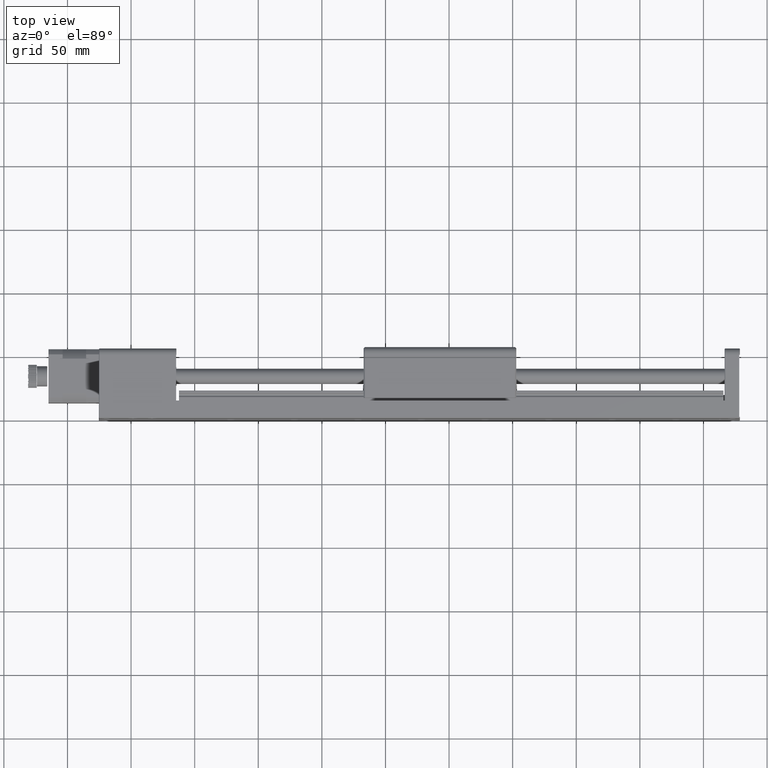
[diagram: clean part render]
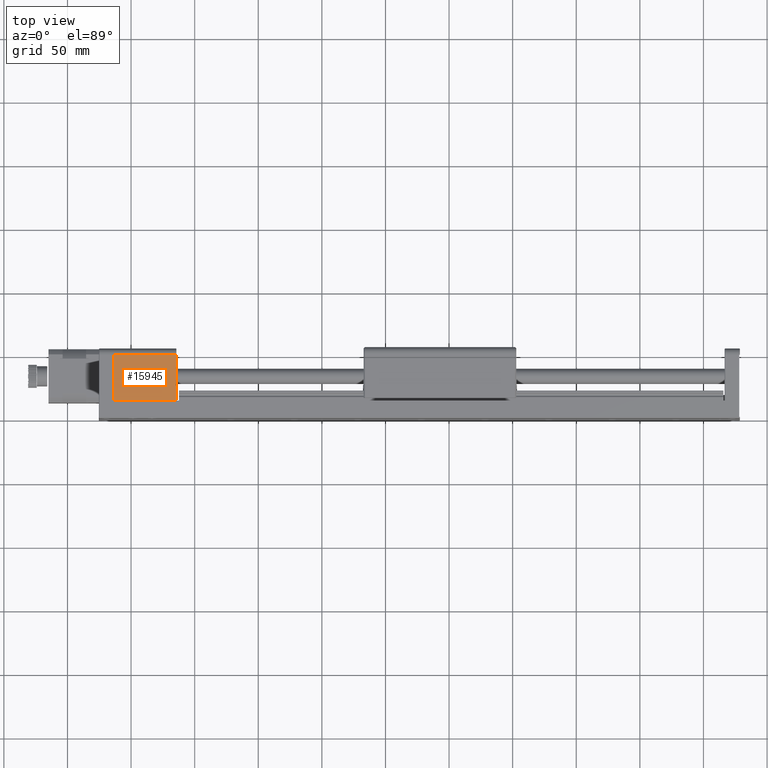
[diagram: same view with one face highlighted and labeled with its STEP entity id]
A machine part, top view. The second image highlights one B-rep face of the part: STEP entity #15945.
In plain terms, the highlighted planar face has unit normal (-0, -0, -1).
Its self-contained STEP definition (entity closure, byte-faithful):
#667 = VERTEX_POINT ( 'NONE', #8347 ) ;
#755 = VECTOR ( 'NONE', #28953, 1000.000000000000000 ) ;
#899 = EDGE_LOOP ( 'NONE', ( #25502, #37342, #13756, #33209 ) ) ;
#1339 = DIRECTION ( 'NONE',  ( 1.322943490866825900E-015, 1.000000000000000000, -1.832510269998355700E-016 ) ) ;
#7652 = DIRECTION ( 'NONE',  ( -1.000000000000000000, 1.322943490866827700E-015, 1.104671909502030800E-014 ) ) ;
#8347 = CARTESIAN_POINT ( 'NONE',  ( -264.5535546772388200, 49.99999999999409500, 203.1675170193777800 ) ) ;
#11066 = LINE ( 'NONE', #32231, #17679 ) ;
#13454 = DIRECTION ( 'NONE',  ( 1.000000000000000000, -1.322943490866827700E-015, -1.104671909502030900E-014 ) ) ;
#13756 = ORIENTED_EDGE ( 'NONE', *, *, #30614, .T. ) ;
#15630 = VECTOR ( 'NONE', #13454, 1000.000000000000000 ) ;
#15945 = ADVANCED_FACE ( 'NONE', ( #30057 ), #19614, .F. ) ;
#17387 = VERTEX_POINT ( 'NONE', #41469 ) ;
#17679 = VECTOR ( 'NONE', #53472, 1000.000000000000000 ) ;
#19614 = PLANE ( 'NONE',  #19708 ) ;
#19708 = AXIS2_PLACEMENT_3D ( 'NONE', #49064, #36464, #7652 ) ;
#23272 = VERTEX_POINT ( 'NONE', #52700 ) ;
#23932 = EDGE_CURVE ( 'NONE', #29002, #667, #32250, .T. ) ;
#25502 = ORIENTED_EDGE ( 'NONE', *, *, #31316, .T. ) ;
#26143 = LINE ( 'NONE', #34371, #15630 ) ;
#26493 = CARTESIAN_POINT ( 'NONE',  ( -313.3535546772386100, 13.99999999999422200, 203.1675170193782900 ) ) ;
#28953 = DIRECTION ( 'NONE',  ( 1.322943490866825900E-015, 1.000000000000000000, -1.832510269998355700E-016 ) ) ;
#29002 = VERTEX_POINT ( 'NONE', #38210 ) ;
#30057 = FACE_OUTER_BOUND ( 'NONE', #899, .T. ) ;
#30614 = EDGE_CURVE ( 'NONE', #667, #17387, #11066, .T. ) ;
#31316 = EDGE_CURVE ( 'NONE', #23272, #29002, #26143, .T. ) ;
#32231 = CARTESIAN_POINT ( 'NONE',  ( -313.3535546772385500, 49.99999999999415900, 203.1675170193783200 ) ) ;
#32250 = LINE ( 'NONE', #54084, #755 ) ;
#33209 = ORIENTED_EDGE ( 'NONE', *, *, #45367, .F. ) ;
#34371 = CARTESIAN_POINT ( 'NONE',  ( -313.3535546772386100, 13.99999999999422200, 203.1675170193782900 ) ) ;
#36464 = DIRECTION ( 'NONE',  ( -1.104671909502030800E-014, -1.832510269998206100E-016, -1.000000000000000000 ) ) ;
#37342 = ORIENTED_EDGE ( 'NONE', *, *, #23932, .T. ) ;
#38210 = CARTESIAN_POINT ( 'NONE',  ( -264.5535546772388800, 13.99999999999415600, 203.1675170193777500 ) ) ;
#38550 = VECTOR ( 'NONE', #1339, 1000.000000000000000 ) ;
#41469 = CARTESIAN_POINT ( 'NONE',  ( -313.3535546772385500, 49.99999999999415900, 203.1675170193783200 ) ) ;
#45367 = EDGE_CURVE ( 'NONE', #23272, #17387, #49630, .T. ) ;
#49064 = CARTESIAN_POINT ( 'NONE',  ( -313.3535546772386100, 13.99999999999422200, 203.1675170193782900 ) ) ;
#49630 = LINE ( 'NONE', #26493, #38550 ) ;
#52700 = CARTESIAN_POINT ( 'NONE',  ( -313.3535546772386100, 13.99999999999422200, 203.1675170193782900 ) ) ;
#53472 = DIRECTION ( 'NONE',  ( -1.000000000000000000, 1.322943490866827700E-015, 1.104671909502030900E-014 ) ) ;
#54084 = CARTESIAN_POINT ( 'NONE',  ( -264.5535546772388200, 49.99999999999409500, 203.1675170193777800 ) ) ;